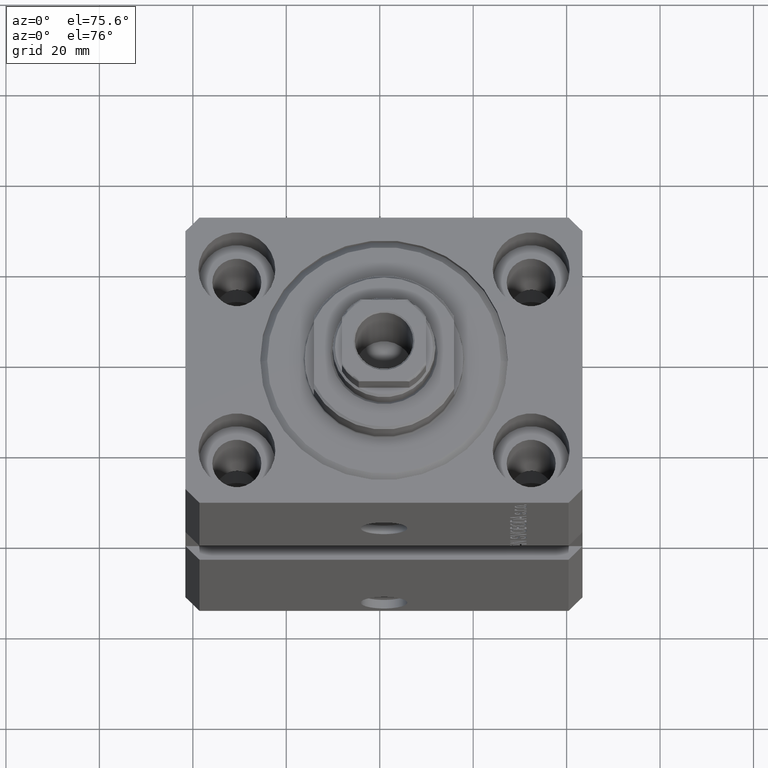
[diagram: clean part render]
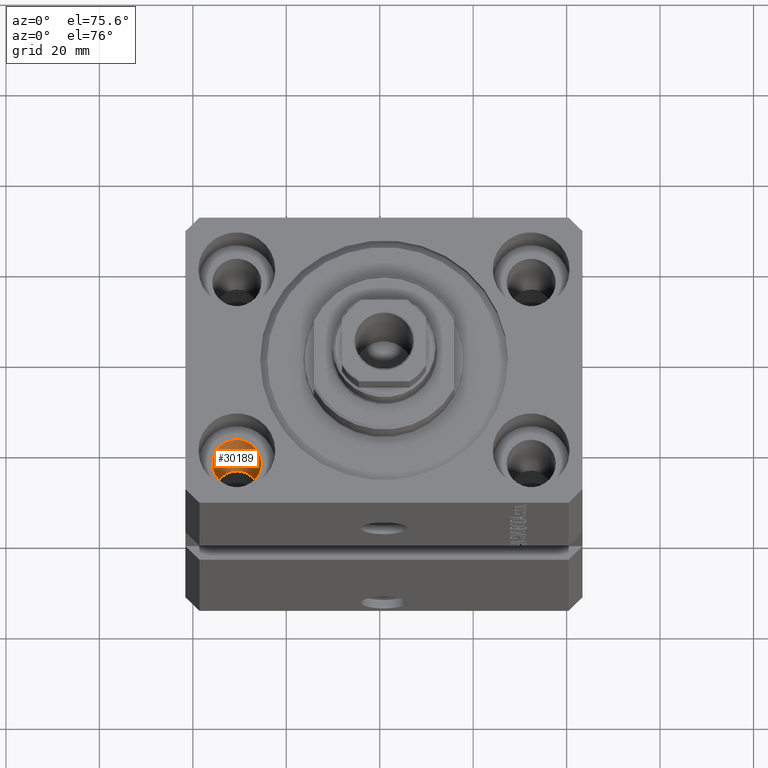
[diagram: same view with one face highlighted and labeled with its STEP entity id]
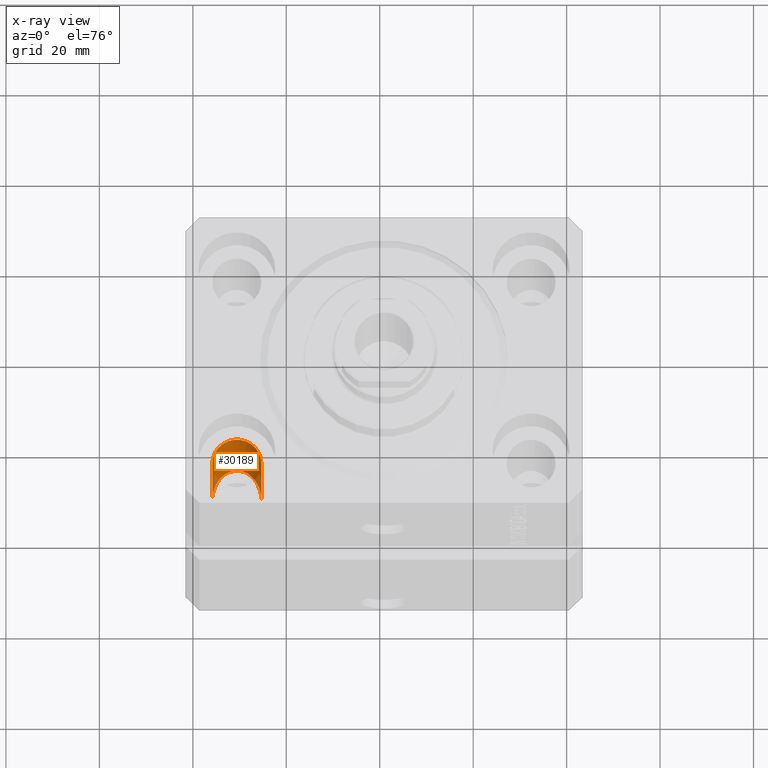
[diagram: x-ray of the same camera — body ghosted, the highlighted face saturated]
A machine part, auxiliary view. The second image highlights one B-rep face of the part: STEP entity #30189.
The next image is the same camera in x-ray: the body ghosted, the highlighted face saturated — about 9% of this face is hidden behind the body in this view.
In plain terms, the highlighted cylindrical surface (edge-blend (fillet) strip) has radius 5.25 mm, axis along (0, 0, 1).
Its self-contained STEP definition (entity closure, byte-faithful):
#343 = CARTESIAN_POINT ( 'NONE',  ( -26.25000000000000355, -9.500000000000012434, -32.50000000000001421 ) ) ;
#1247 = ORIENTED_EDGE ( 'NONE', *, *, #13512, .F. ) ;
#2175 = LINE ( 'NONE', #6248, #25667 ) ;
#2414 = CARTESIAN_POINT ( 'NONE',  ( -31.50000000000000000, -20.00000000000000000, -11.00000000000000000 ) ) ;
#2532 = CARTESIAN_POINT ( 'NONE',  ( -36.75000000000000000, -20.00000000000000000, -11.00000000000000000 ) ) ;
#3729 = AXIS2_PLACEMENT_3D ( 'NONE', #24009, #21544, #28758 ) ;
#6248 = CARTESIAN_POINT ( 'NONE',  ( -36.75000000000000000, -20.00000000000000000, -93.00000000000000000 ) ) ;
#8249 = CIRCLE ( 'NONE', #47463, 5.250000000000000888 ) ;
#8777 = VERTEX_POINT ( 'NONE', #41127 ) ;
#9335 = CYLINDRICAL_SURFACE ( 'NONE', #3729, 5.250000000000000888 ) ;
#11510 = VERTEX_POINT ( 'NONE', #2532 ) ;
#12030 =( BOUNDED_CURVE ( )  B_SPLINE_CURVE ( 3, ( #22930, #36930, #343, #33301 ),
 .UNSPECIFIED., .F., .F. ) 
 B_SPLINE_CURVE_WITH_KNOTS ( ( 4, 4 ),
 ( 4.712388980384689674, 7.853981633974482790 ),
 .UNSPECIFIED. ) 
 CURVE ( )  GEOMETRIC_REPRESENTATION_ITEM ( )  RATIONAL_B_SPLINE_CURVE ( ( 1.000000000000000000, 0.3333333333333333703, 0.3333333333333333703, 1.000000000000000000 ) ) 
 REPRESENTATION_ITEM ( '' )  );
#12496 = EDGE_LOOP ( 'NONE', ( #1247, #45469, #13244, #15420 ) ) ;
#13244 = ORIENTED_EDGE ( 'NONE', *, *, #22308, .T. ) ;
#13512 = EDGE_CURVE ( 'NONE', #21923, #11510, #2175, .T. ) ;
#13524 = VECTOR ( 'NONE', #29127, 1000.000000000000000 ) ;
#15420 = ORIENTED_EDGE ( 'NONE', *, *, #44016, .T. ) ;
#21544 = DIRECTION ( 'NONE',  ( -0.000000000000000000, -0.000000000000000000, 1.000000000000000000 ) ) ;
#21923 = VERTEX_POINT ( 'NONE', #25328 ) ;
#22308 = EDGE_CURVE ( 'NONE', #8777, #22400, #33671, .T. ) ;
#22400 = VERTEX_POINT ( 'NONE', #30526 ) ;
#22930 = CARTESIAN_POINT ( 'NONE',  ( -36.74999999999999289, -20.00000000000000355, -43.00000000000000000 ) ) ;
#24009 = CARTESIAN_POINT ( 'NONE',  ( -31.50000000000000000, -20.00000000000000000, -93.00000000000000000 ) ) ;
#25328 = CARTESIAN_POINT ( 'NONE',  ( -36.74999999999999289, -20.00000000000000355, -43.00000000000000000 ) ) ;
#25667 = VECTOR ( 'NONE', #28389, 1000.000000000000000 ) ;
#28389 = DIRECTION ( 'NONE',  ( -0.000000000000000000, -0.000000000000000000, 1.000000000000000000 ) ) ;
#28758 = DIRECTION ( 'NONE',  ( 1.000000000000000000, 0.000000000000000000, 0.000000000000000000 ) ) ;
#29127 = DIRECTION ( 'NONE',  ( -0.000000000000000000, -0.000000000000000000, 1.000000000000000000 ) ) ;
#30059 = CARTESIAN_POINT ( 'NONE',  ( -26.25000000000000000, -20.00000000000000000, -93.00000000000000000 ) ) ;
#30189 = ADVANCED_FACE ( 'NONE', ( #42313 ), #9335, .F. ) ;
#30526 = CARTESIAN_POINT ( 'NONE',  ( -26.25000000000000000, -20.00000000000000000, -11.00000000000000000 ) ) ;
#31674 = EDGE_CURVE ( 'NONE', #21923, #8777, #12030, .T. ) ;
#33301 = CARTESIAN_POINT ( 'NONE',  ( -26.24999999999999645, -20.00000000000000355, -43.00000000000000000 ) ) ;
#33671 = LINE ( 'NONE', #30059, #13524 ) ;
#36930 = CARTESIAN_POINT ( 'NONE',  ( -36.74999999999999289, -9.500000000000012434, -32.50000000000001421 ) ) ;
#39234 = DIRECTION ( 'NONE',  ( 0.000000000000000000, 0.000000000000000000, 1.000000000000000000 ) ) ;
#41127 = CARTESIAN_POINT ( 'NONE',  ( -26.24999999999999645, -20.00000000000000355, -43.00000000000000000 ) ) ;
#42313 = FACE_OUTER_BOUND ( 'NONE', #12496, .T. ) ;
#44016 = EDGE_CURVE ( 'NONE', #22400, #11510, #8249, .T. ) ;
#45469 = ORIENTED_EDGE ( 'NONE', *, *, #31674, .T. ) ;
#46425 = DIRECTION ( 'NONE',  ( 1.000000000000000000, 0.000000000000000000, 0.000000000000000000 ) ) ;
#47463 = AXIS2_PLACEMENT_3D ( 'NONE', #2414, #39234, #46425 ) ;